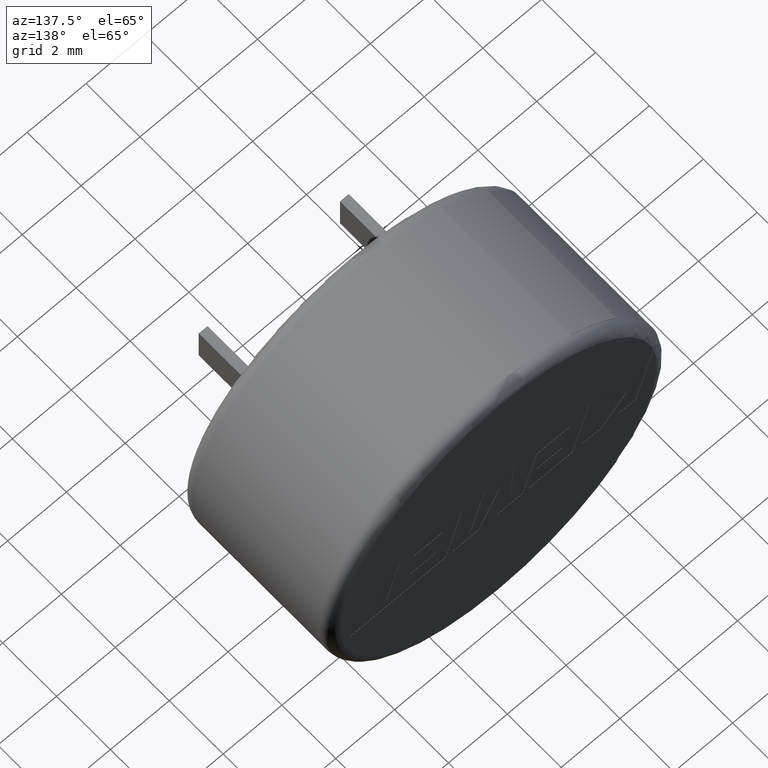
[diagram: clean part render]
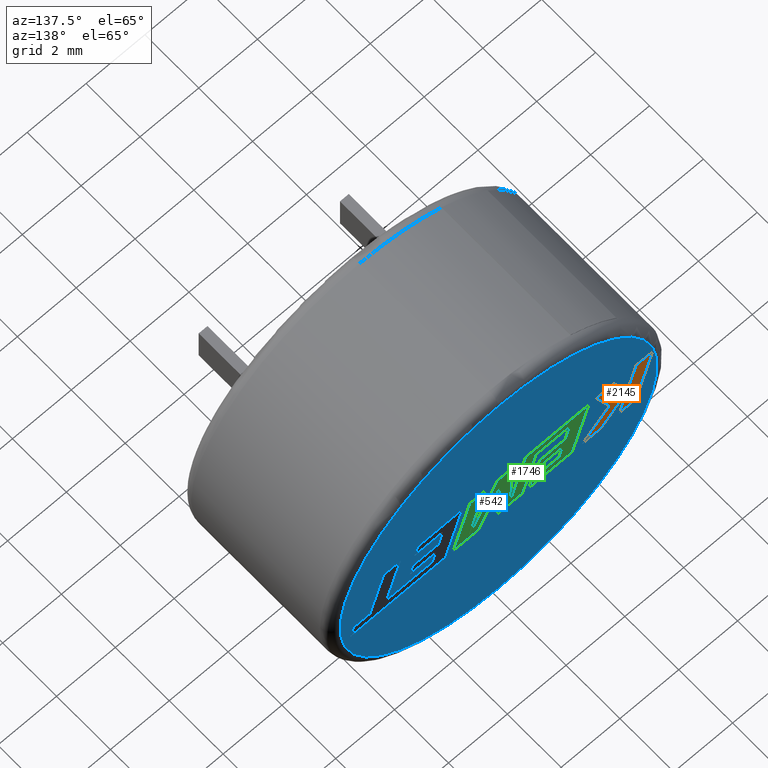
[diagram: same view with three faces highlighted in distinct colors, each labeled with its STEP entity id]
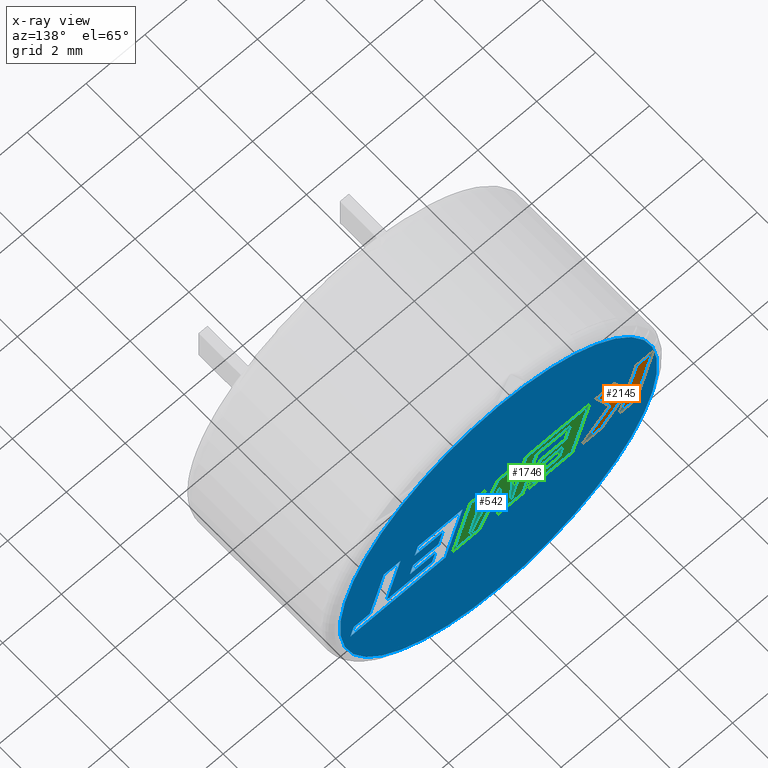
[diagram: x-ray of the same camera — body ghosted, the three highlighted faces saturated]
A machine part, auxiliary view with three faces highlighted in distinct colors.
The next image is the same camera in x-ray (body ghosted, the three faces saturated) — at least one of them is partly hidden behind the body in this view.
Their STEP definitions:

[orange] entity #2145 — the highlighted planar face has unit normal (0, -1, 0).
#36 = VECTOR ( 'NONE', #896, 1000.000000000000000 ) ;
#69 = VECTOR ( 'NONE', #1090, 1000.000000000000100 ) ;
#172 = EDGE_CURVE ( 'NONE', #976, #2391, #1281, .T. ) ;
#201 = DIRECTION ( 'NONE',  ( -0.7059037656364859400, -0.0000000000000000000, 0.7083077534943613700 ) ) ;
#208 = EDGE_CURVE ( 'NONE', #2085, #976, #733, .T. ) ;
#217 = DIRECTION ( 'NONE',  ( -1.000000000000000000, -0.0000000000000000000, -0.0000000000000000000 ) ) ;
#245 = ORIENTED_EDGE ( 'NONE', *, *, #172, .T. ) ;
#293 = FACE_OUTER_BOUND ( 'NONE', #2718, .T. ) ;
#307 = ORIENTED_EDGE ( 'NONE', *, *, #1096, .T. ) ;
#366 = CARTESIAN_POINT ( 'NONE',  ( -3.765038890539953000, 5.495000000000000100, -0.04168639734653927600 ) ) ;
#380 = CARTESIAN_POINT ( 'NONE',  ( -4.671798733445354100, 5.495000000000000100, -0.9631222229663523000 ) ) ;
#395 = VECTOR ( 'NONE', #1238, 1000.000000000000000 ) ;
#423 = EDGE_CURVE ( 'NONE', #1423, #570, #1717, .T. ) ;
#425 = DIRECTION ( 'NONE',  ( -1.000000000000000000, -0.0000000000000000000, -0.0000000000000000000 ) ) ;
#444 = PLANE ( 'NONE',  #704 ) ;
#477 = CARTESIAN_POINT ( 'NONE',  ( -5.251205731465742800, 5.495000000000000100, 1.053028994543842500 ) ) ;
#498 = LINE ( 'NONE', #645, #1572 ) ;
#531 = LINE ( 'NONE', #663, #36 ) ;
#551 = ORIENTED_EDGE ( 'NONE', *, *, #1785, .T. ) ;
#570 = VERTEX_POINT ( 'NONE', #1450 ) ;
#594 = VECTOR ( 'NONE', #2621, 1000.000000000000100 ) ;
#600 = CARTESIAN_POINT ( 'NONE',  ( -3.311272758248907000, 5.495000000000000100, 1.053028994543904900 ) ) ;
#645 = CARTESIAN_POINT ( 'NONE',  ( -3.487335487235283500, 5.495000000000000100, -0.9631222229663523000 ) ) ;
#661 = VECTOR ( 'NONE', #425, 1000.000000000000000 ) ;
#663 = CARTESIAN_POINT ( 'NONE',  ( -3.924721411668132800, 5.495000000000000100, 1.053028994543904900 ) ) ;
#692 = CARTESIAN_POINT ( 'NONE',  ( -3.765038890539953000, 5.495000000000000100, -0.04168639734653927600 ) ) ;
#704 = AXIS2_PLACEMENT_3D ( 'NONE', #2581, #1062, #1915 ) ;
#733 = LINE ( 'NONE', #477, #1946 ) ;
#739 = ORIENTED_EDGE ( 'NONE', *, *, #2050, .T. ) ;
#749 = ORIENTED_EDGE ( 'NONE', *, *, #2206, .T. ) ;
#880 = VERTEX_POINT ( 'NONE', #1180 ) ;
#896 = DIRECTION ( 'NONE',  ( 0.3725077383644269700, -0.0000000000000000000, 0.9280290862136917300 ) ) ;
#909 = CARTESIAN_POINT ( 'NONE',  ( -4.677904531710408900, 5.495000000000000100, 1.053028994543905300 ) ) ;
#976 = VERTEX_POINT ( 'NONE', #1865 ) ;
#1062 = DIRECTION ( 'NONE',  ( 0.0000000000000000000, -1.000000000000000000, 0.0000000000000000000 ) ) ;
#1079 = CARTESIAN_POINT ( 'NONE',  ( -2.823838918333584600, 5.495000000000000100, -0.9631222229663523000 ) ) ;
#1090 = DIRECTION ( 'NONE',  ( 0.2755265765475025100, -0.0000000000000000000, -0.9612934544747577800 ) ) ;
#1096 = EDGE_CURVE ( 'NONE', #1671, #2691, #2733, .T. ) ;
#1117 = CARTESIAN_POINT ( 'NONE',  ( -4.364136469712908800, 5.495000000000000100, -0.04168639734652045800 ) ) ;
#1180 = CARTESIAN_POINT ( 'NONE',  ( -3.487335487235283500, 5.495000000000000100, -0.9631222229663523000 ) ) ;
#1183 = CARTESIAN_POINT ( 'NONE',  ( -4.097731242331414100, 5.495000000000000100, -0.9631222229663523000 ) ) ;
#1215 = ORIENTED_EDGE ( 'NONE', *, *, #208, .T. ) ;
#1238 = DIRECTION ( 'NONE',  ( 0.7145695586382339000, -0.0000000000000000000, -0.6995643972269883800 ) ) ;
#1246 = CARTESIAN_POINT ( 'NONE',  ( -2.823838918333584600, 5.495000000000000100, -0.9631222229663523000 ) ) ;
#1270 = VERTEX_POINT ( 'NONE', #1117 ) ;
#1281 = LINE ( 'NONE', #2385, #2014 ) ;
#1325 = VERTEX_POINT ( 'NONE', #1079 ) ;
#1423 = VERTEX_POINT ( 'NONE', #1523 ) ;
#1450 = CARTESIAN_POINT ( 'NONE',  ( -4.097731242331414100, 5.495000000000000100, -0.9631222229663523000 ) ) ;
#1462 = CARTESIAN_POINT ( 'NONE',  ( -3.924721411668132800, 5.495000000000000100, 1.053028994543904900 ) ) ;
#1463 = ORIENTED_EDGE ( 'NONE', *, *, #2353, .T. ) ;
#1478 = CARTESIAN_POINT ( 'NONE',  ( -3.311272758248907000, 5.495000000000000100, 1.053028994543904900 ) ) ;
#1523 = CARTESIAN_POINT ( 'NONE',  ( -4.344182283275985800, 5.495000000000000100, -0.1033573956103139300 ) ) ;
#1563 = LINE ( 'NONE', #2546, #2516 ) ;
#1572 = VECTOR ( 'NONE', #217, 1000.000000000000000 ) ;
#1613 = VERTEX_POINT ( 'NONE', #366 ) ;
#1671 = VERTEX_POINT ( 'NONE', #1462 ) ;
#1675 = VECTOR ( 'NONE', #2764, 1000.000000000000000 ) ;
#1717 = LINE ( 'NONE', #1183, #2706 ) ;
#1719 = CARTESIAN_POINT ( 'NONE',  ( -4.671798733445354100, 5.495000000000000100, -0.9631222229663523000 ) ) ;
#1785 = EDGE_CURVE ( 'NONE', #880, #1423, #1563, .T. ) ;
#1865 = CARTESIAN_POINT ( 'NONE',  ( -5.251205731465742800, 5.495000000000000100, 1.053028994543842500 ) ) ;
#1902 = EDGE_CURVE ( 'NONE', #1270, #1671, #531, .T. ) ;
#1903 = LINE ( 'NONE', #2123, #69 ) ;
#1915 = DIRECTION ( 'NONE',  ( 0.0000000000000000000, -0.0000000000000000000, -1.000000000000000000 ) ) ;
#1946 = VECTOR ( 'NONE', #2641, 1000.000000000000100 ) ;
#2008 = ORIENTED_EDGE ( 'NONE', *, *, #2218, .T. ) ;
#2014 = VECTOR ( 'NONE', #2394, 1000.000000000000000 ) ;
#2045 = ORIENTED_EDGE ( 'NONE', *, *, #1902, .T. ) ;
#2048 = DIRECTION ( 'NONE',  ( 0.2755520632520542200, -0.0000000000000000000, -0.9612861490927329100 ) ) ;
#2050 = EDGE_CURVE ( 'NONE', #1613, #1325, #2634, .T. ) ;
#2075 = ORIENTED_EDGE ( 'NONE', *, *, #2152, .T. ) ;
#2085 = VERTEX_POINT ( 'NONE', #380 ) ;
#2123 = CARTESIAN_POINT ( 'NONE',  ( -4.364136469712908800, 5.495000000000000100, -0.04168639734652045800 ) ) ;
#2145 = ADVANCED_FACE ( 'NONE', ( #293 ), #444, .F. ) ;
#2152 = EDGE_CURVE ( 'NONE', #2391, #1270, #1903, .T. ) ;
#2204 = LINE ( 'NONE', #692, #594 ) ;
#2206 = EDGE_CURVE ( 'NONE', #1325, #880, #498, .T. ) ;
#2218 = EDGE_CURVE ( 'NONE', #570, #2085, #2265, .T. ) ;
#2265 = LINE ( 'NONE', #1719, #661 ) ;
#2353 = EDGE_CURVE ( 'NONE', #2691, #1613, #2204, .T. ) ;
#2381 = ORIENTED_EDGE ( 'NONE', *, *, #423, .T. ) ;
#2385 = CARTESIAN_POINT ( 'NONE',  ( -4.677904531710408900, 5.495000000000000100, 1.053028994543905300 ) ) ;
#2391 = VERTEX_POINT ( 'NONE', #909 ) ;
#2394 = DIRECTION ( 'NONE',  ( 1.000000000000000000, -0.0000000000000000000, 1.096870650732911000E-013 ) ) ;
#2516 = VECTOR ( 'NONE', #201, 1000.000000000000100 ) ;
#2546 = CARTESIAN_POINT ( 'NONE',  ( -4.344182283275985800, 5.495000000000000100, -0.1033573956103139300 ) ) ;
#2581 = CARTESIAN_POINT ( 'NONE',  ( 0.0000000000000000000, 5.495000000000000100, 0.0000000000000000000 ) ) ;
#2621 = DIRECTION ( 'NONE',  ( -0.3829140317376766900, -0.0000000000000000000, -0.9237839814038764100 ) ) ;
#2634 = LINE ( 'NONE', #1246, #395 ) ;
#2641 = DIRECTION ( 'NONE',  ( -0.2762033010252001900, -0.0000000000000000000, 0.9610992334315862100 ) ) ;
#2691 = VERTEX_POINT ( 'NONE', #1478 ) ;
#2706 = VECTOR ( 'NONE', #2048, 1000.000000000000100 ) ;
#2718 = EDGE_LOOP ( 'NONE', ( #1215, #245, #2075, #2045, #307, #1463, #739, #749, #551, #2381, #2008 ) ) ;
#2733 = LINE ( 'NONE', #600, #1675 ) ;
#2764 = DIRECTION ( 'NONE',  ( 1.000000000000000000, -0.0000000000000000000, -0.0000000000000000000 ) ) ;

[blue] entity #542 — the highlighted planar face has unit normal (0, 1, 0).
#5 = VECTOR ( 'NONE', #338, 1000.000000000000000 ) ;
#13 = DIRECTION ( 'NONE',  ( 0.2755265765475025100, -0.0000000000000000000, -0.9612934544747577800 ) ) ;
#15 = EDGE_LOOP ( 'NONE', ( #128, #952, #913, #646, #311, #2113, #1240, #1958, #1527, #722, #697, #510, #1765, #860, #1864, #2619, #1317, #1800, #1182, #178, #2664, #1013, #2107 ) ) ;
#22 = CARTESIAN_POINT ( 'NONE',  ( -1.016703871901081000, 5.500000000000000000, -0.9631222229663523000 ) ) ;
#24 = VECTOR ( 'NONE', #313, 1000.000000000000200 ) ;
#26 = VERTEX_POINT ( 'NONE', #1262 ) ;
#29 = CARTESIAN_POINT ( 'NONE',  ( 0.6798407158200339100, 5.500000000000000000, -0.9631222229663525300 ) ) ;
#32 = CARTESIAN_POINT ( 'NONE',  ( 1.807006385584198200, 5.500000000000000000, -0.9631222229663527500 ) ) ;
#35 = DIRECTION ( 'NONE',  ( 0.2740217765954067200, 0.0000000000000000000, -0.9617234872620595800 ) ) ;
#43 = CARTESIAN_POINT ( 'NONE',  ( 2.159524185522648100, 5.500000000000000000, -0.2042869498019199100 ) ) ;
#44 = EDGE_CURVE ( 'NONE', #1448, #774, #130, .T. ) ;
#49 = ORIENTED_EDGE ( 'NONE', *, *, #1449, .F. ) ;
#52 = CARTESIAN_POINT ( 'NONE',  ( 3.337746768091752500, 5.500000000000000000, 1.053028994543904200 ) ) ;
#53 = EDGE_LOOP ( 'NONE', ( #1964, #1793 ) ) ;
#55 = VERTEX_POINT ( 'NONE', #2563 ) ;
#58 = EDGE_CURVE ( 'NONE', #139, #64, #766, .T. ) ;
#64 = VERTEX_POINT ( 'NONE', #1949 ) ;
#65 = CARTESIAN_POINT ( 'NONE',  ( -4.671798733445354100, 5.500000000000000000, -0.9631222229663523000 ) ) ;
#73 = EDGE_CURVE ( 'NONE', #110, #1524, #1753, .T. ) ;
#84 = EDGE_CURVE ( 'NONE', #64, #450, #2431, .T. ) ;
#86 = CARTESIAN_POINT ( 'NONE',  ( 2.053187690916773900, 5.500000000000000000, 0.1683628157980141300 ) ) ;
#90 = EDGE_CURVE ( 'NONE', #856, #1448, #604, .T. ) ;
#98 = LINE ( 'NONE', #2638, #432 ) ;
#102 = FACE_OUTER_BOUND ( 'NONE', #53, .T. ) ;
#106 = VERTEX_POINT ( 'NONE', #1990 ) ;
#107 = DIRECTION ( 'NONE',  ( 0.2793947940814914300, 0.0000000000000000000, -0.9601763114346035800 ) ) ;
#110 = VERTEX_POINT ( 'NONE', #1537 ) ;
#120 = LINE ( 'NONE', #1705, #1899 ) ;
#128 = ORIENTED_EDGE ( 'NONE', *, *, #1181, .F. ) ;
#130 = LINE ( 'NONE', #2150, #1172 ) ;
#135 = ORIENTED_EDGE ( 'NONE', *, *, #1725, .F. ) ;
#139 = VERTEX_POINT ( 'NONE', #29 ) ;
#153 = VERTEX_POINT ( 'NONE', #279 ) ;
#155 = LINE ( 'NONE', #2132, #1441 ) ;
#163 = VERTEX_POINT ( 'NONE', #1970 ) ;
#177 = DIRECTION ( 'NONE',  ( 0.2755520632520542200, -0.0000000000000000000, -0.9612861490927329100 ) ) ;
#178 = ORIENTED_EDGE ( 'NONE', *, *, #1530, .F. ) ;
#191 = FACE_BOUND ( 'NONE', #15, .T. ) ;
#196 = CARTESIAN_POINT ( 'NONE',  ( 1.807006385584198200, 5.500000000000000000, -0.9631222229663527500 ) ) ;
#202 = CARTESIAN_POINT ( 'NONE',  ( -3.765038890539953000, 5.500000000000000000, -0.04168639734653927600 ) ) ;
#204 = CARTESIAN_POINT ( 'NONE',  ( 2.268643844463263300, 5.500000000000000000, -0.5792907574821812800 ) ) ;
#213 = CARTESIAN_POINT ( 'NONE',  ( -1.125700924485933100, 5.500000000000000000, -0.5793581909814401500 ) ) ;
#234 = CARTESIAN_POINT ( 'NONE',  ( 2.918285894870225900, 5.500000000000000000, 0.1683628157980139000 ) ) ;
#252 = CARTESIAN_POINT ( 'NONE',  ( 3.192556318522602200, 5.500000000000000000, -0.5766915026842742700 ) ) ;
#254 = DIRECTION ( 'NONE',  ( 1.000000000000000000, 0.0000000000000000000, -3.775570415932256000E-016 ) ) ;
#270 = CARTESIAN_POINT ( 'NONE',  ( -2.259736175507299100, 5.500000000000000000, 0.1683628157939400200 ) ) ;
#271 = DIRECTION ( 'NONE',  ( 0.9999891854650020400, 0.0000000000000000000, 0.004650693823678137000 ) ) ;
#273 = VECTOR ( 'NONE', #2620, 1000.000000000000000 ) ;
#279 = CARTESIAN_POINT ( 'NONE',  ( 2.859214151411832100, 5.500000000000000000, 0.6693814386009964100 ) ) ;
#280 = CARTESIAN_POINT ( 'NONE',  ( 1.227090569557494300, 5.500000000000000000, 1.053028994543904900 ) ) ;
#285 = EDGE_CURVE ( 'NONE', #2694, #422, #1909, .T. ) ;
#288 = VERTEX_POINT ( 'NONE', #2241 ) ;
#298 = VECTOR ( 'NONE', #1921, 1000.000000000000000 ) ;
#300 = VECTOR ( 'NONE', #2334, 1000.000000000000100 ) ;
#301 = VERTEX_POINT ( 'NONE', #2222 ) ;
#311 = ORIENTED_EDGE ( 'NONE', *, *, #501, .F. ) ;
#313 = DIRECTION ( 'NONE',  ( 0.2759782365590740500, 0.0000000000000000000, -0.9611638845408954100 ) ) ;
#321 = VERTEX_POINT ( 'NONE', #1367 ) ;
#322 = DIRECTION ( 'NONE',  ( -0.2762517575166151300, 0.0000000000000000000, 0.9610853065513910200 ) ) ;
#329 = EDGE_CURVE ( 'NONE', #106, #55, #2212, .T. ) ;
#336 = VERTEX_POINT ( 'NONE', #1148 ) ;
#338 = DIRECTION ( 'NONE',  ( 1.000000000000000000, 0.0000000000000000000, 0.0000000000000000000 ) ) ;
#352 = ORIENTED_EDGE ( 'NONE', *, *, #497, .F. ) ;
#353 = ORIENTED_EDGE ( 'NONE', *, *, #1814, .F. ) ;
#357 = CARTESIAN_POINT ( 'NONE',  ( -2.259736175507299100, 5.500000000000000000, 0.1683628157939400200 ) ) ;
#370 = DIRECTION ( 'NONE',  ( 0.2729786930695173900, 0.0000000000000000000, -0.9620200793798735500 ) ) ;
#373 = EDGE_CURVE ( 'NONE', #1122, #2451, #1034, .T. ) ;
#381 = DIRECTION ( 'NONE',  ( -0.2760118818968560500, 0.0000000000000000000, 0.9611542233438689100 ) ) ;
#393 = ORIENTED_EDGE ( 'NONE', *, *, #1913, .F. ) ;
#394 = AXIS2_PLACEMENT_3D ( 'NONE', #2501, #2540, #1661 ) ;
#404 = DIRECTION ( 'NONE',  ( 0.2745159998572669300, 0.0000000000000000000, -0.9615825319869143500 ) ) ;
#418 = VERTEX_POINT ( 'NONE', #757 ) ;
#422 = VERTEX_POINT ( 'NONE', #1203 ) ;
#426 = DIRECTION ( 'NONE',  ( 0.2762033010288755300, 0.0000000000000000000, -0.9610992334305299400 ) ) ;
#432 = VECTOR ( 'NONE', #1140, 1000.000000000000000 ) ;
#448 = CARTESIAN_POINT ( 'NONE',  ( 0.0000000000000000000, 5.500000000000000000, 0.0000000000000000000 ) ) ;
#450 = VERTEX_POINT ( 'NONE', #796 ) ;
#454 = LINE ( 'NONE', #770, #2165 ) ;
#455 = ORIENTED_EDGE ( 'NONE', *, *, #715, .F. ) ;
#471 = VECTOR ( 'NONE', #2086, 1000.000000000000000 ) ;
#476 = VERTEX_POINT ( 'NONE', #2040 ) ;
#479 = EDGE_CURVE ( 'NONE', #802, #1857, #568, .T. ) ;
#483 = EDGE_CURVE ( 'NONE', #321, #153, #2273, .T. ) ;
#487 = VECTOR ( 'NONE', #2349, 1000.000000000000000 ) ;
#491 = VERTEX_POINT ( 'NONE', #2728 ) ;
#497 = EDGE_CURVE ( 'NONE', #1394, #2083, #1073, .T. ) ;
#501 = EDGE_CURVE ( 'NONE', #1792, #1113, #1275, .T. ) ;
#503 = LINE ( 'NONE', #1029, #1715 ) ;
#510 = ORIENTED_EDGE ( 'NONE', *, *, #1144, .F. ) ;
#525 = CARTESIAN_POINT ( 'NONE',  ( -0.9143214339711456300, 5.500000000000000000, 1.053028994543905300 ) ) ;
#542 = ADVANCED_FACE ( 'NONE', ( #2461, #191, #2302, #102 ), #2114, .T. ) ;
#546 = DIRECTION ( 'NONE',  ( -1.000000000000000000, 0.0000000000000000000, 2.506186073112944800E-016 ) ) ;
#549 = VECTOR ( 'NONE', #322, 1000.000000000000100 ) ;
#560 = LINE ( 'NONE', #2017, #2133 ) ;
#565 = VECTOR ( 'NONE', #2345, 1000.000000000000000 ) ;
#567 = EDGE_CURVE ( 'NONE', #2451, #476, #503, .T. ) ;
#568 = LINE ( 'NONE', #357, #5 ) ;
#584 = EDGE_CURVE ( 'NONE', #1560, #2167, #2704, .T. ) ;
#593 = CARTESIAN_POINT ( 'NONE',  ( -1.284868498917413500, 5.500000000000000000, 0.6694550024109757700 ) ) ;
#599 = VECTOR ( 'NONE', #35, 1000.000000000000200 ) ;
#604 = LINE ( 'NONE', #2552, #273 ) ;
#606 = DIRECTION ( 'NONE',  ( 0.2746459304916897800, 0.0000000000000000000, -0.9615454294334480100 ) ) ;
#608 = EDGE_CURVE ( 'NONE', #1692, #336, #2178, .T. ) ;
#610 = ORIENTED_EDGE ( 'NONE', *, *, #2270, .F. ) ;
#611 = CARTESIAN_POINT ( 'NONE',  ( -2.153399680898977000, 5.500000000000000000, -0.2043543833022431500 ) ) ;
#621 = ORIENTED_EDGE ( 'NONE', *, *, #1196, .F. ) ;
#624 = EDGE_CURVE ( 'NONE', #1111, #491, #2735, .T. ) ;
#634 = VERTEX_POINT ( 'NONE', #678 ) ;
#638 = VECTOR ( 'NONE', #404, 999.9999999999998900 ) ;
#643 = DIRECTION ( 'NONE',  ( -1.000000000000000000, -0.0000000000000000000, -0.0000000000000000000 ) ) ;
#646 = ORIENTED_EDGE ( 'NONE', *, *, #2680, .F. ) ;
#648 = DIRECTION ( 'NONE',  ( 1.000000000000000000, 0.0000000000000000000, 0.0000000000000000000 ) ) ;
#657 = ORIENTED_EDGE ( 'NONE', *, *, #2371, .F. ) ;
#670 = VECTOR ( 'NONE', #1253, 1000.000000000000200 ) ;
#678 = CARTESIAN_POINT ( 'NONE',  ( -4.364136469712908800, 5.500000000000000000, -0.04168639734652045800 ) ) ;
#697 = ORIENTED_EDGE ( 'NONE', *, *, #2005, .F. ) ;
#711 = EDGE_CURVE ( 'NONE', #163, #1792, #1374, .T. ) ;
#713 = DIRECTION ( 'NONE',  ( 1.000000000000000000, 0.0000000000000000000, -4.034331580539989700E-016 ) ) ;
#715 = EDGE_CURVE ( 'NONE', #1822, #810, #98, .T. ) ;
#716 = ORIENTED_EDGE ( 'NONE', *, *, #932, .F. ) ;
#720 = VECTOR ( 'NONE', #1612, 1000.000000000000100 ) ;
#721 = CARTESIAN_POINT ( 'NONE',  ( 2.159524185522648100, 5.500000000000000000, -0.2042869498019199100 ) ) ;
#722 = ORIENTED_EDGE ( 'NONE', *, *, #916, .F. ) ;
#725 = CARTESIAN_POINT ( 'NONE',  ( -1.284868498917413500, 5.500000000000000000, 0.6694550024109757700 ) ) ;
#743 = DIRECTION ( 'NONE',  ( 1.000000000000000000, 0.0000000000000000000, -2.506541263247940100E-016 ) ) ;
#753 = ORIENTED_EDGE ( 'NONE', *, *, #2748, .F. ) ;
#757 = CARTESIAN_POINT ( 'NONE',  ( 3.024744995834479400, 5.500000000000000000, -0.2042869498019201400 ) ) ;
#762 = CARTESIAN_POINT ( 'NONE',  ( 3.805490025235814100, 5.500000000000000000, -0.5738409048522489200 ) ) ;
#766 = LINE ( 'NONE', #838, #300 ) ;
#770 = CARTESIAN_POINT ( 'NONE',  ( -3.924721411668132800, 5.500000000000000000, 1.053028994543904900 ) ) ;
#774 = VERTEX_POINT ( 'NONE', #933 ) ;
#779 = CARTESIAN_POINT ( 'NONE',  ( -3.086335984546776600, 5.500000000000000000, 1.053028994543905700 ) ) ;
#789 = VECTOR ( 'NONE', #743, 1000.000000000000000 ) ;
#796 = CARTESIAN_POINT ( 'NONE',  ( 0.04300255174971300700, 5.500000000000000000, -0.9631222229663527500 ) ) ;
#802 = VERTEX_POINT ( 'NONE', #270 ) ;
#808 = ORIENTED_EDGE ( 'NONE', *, *, #1616, .F. ) ;
#810 = VERTEX_POINT ( 'NONE', #1594 ) ;
#819 = DIRECTION ( 'NONE',  ( -1.000000000000000000, 0.0000000000000000000, 5.050979426444720200E-016 ) ) ;
#820 = ORIENTED_EDGE ( 'NONE', *, *, #90, .F. ) ;
#826 = VECTOR ( 'NONE', #1522, 1000.000000000000100 ) ;
#829 = CARTESIAN_POINT ( 'NONE',  ( 3.805490025235814100, 5.500000000000000000, -0.5738409048522489200 ) ) ;
#830 = LINE ( 'NONE', #1494, #2668 ) ;
#838 = CARTESIAN_POINT ( 'NONE',  ( 0.6798407158200340300, 5.500000000000000000, -0.9631222229663527500 ) ) ;
#839 = CARTESIAN_POINT ( 'NONE',  ( -3.765038890539953000, 5.500000000000000000, -0.04168639734653927600 ) ) ;
#842 = CARTESIAN_POINT ( 'NONE',  ( 0.04300255174971300700, 5.500000000000000000, -0.9631222229663527500 ) ) ;
#849 = ORIENTED_EDGE ( 'NONE', *, *, #2319, .F. ) ;
#856 = VERTEX_POINT ( 'NONE', #1188 ) ;
#860 = ORIENTED_EDGE ( 'NONE', *, *, #373, .F. ) ;
#864 = LINE ( 'NONE', #213, #1606 ) ;
#868 = EDGE_CURVE ( 'NONE', #1224, #26, #1870, .T. ) ;
#886 = CARTESIAN_POINT ( 'NONE',  ( -3.924721411668132800, 5.500000000000000000, 1.053028994543904900 ) ) ;
#900 = LINE ( 'NONE', #2710, #1304 ) ;
#902 = VECTOR ( 'NONE', #819, 1000.000000000000000 ) ;
#912 = EDGE_CURVE ( 'NONE', #2415, #1111, #2698, .T. ) ;
#913 = ORIENTED_EDGE ( 'NONE', *, *, #608, .F. ) ;
#916 = EDGE_CURVE ( 'NONE', #2494, #1619, #560, .T. ) ;
#924 = VECTOR ( 'NONE', #177, 1000.000000000000100 ) ;
#932 = EDGE_CURVE ( 'NONE', #2083, #2292, #2635, .T. ) ;
#933 = CARTESIAN_POINT ( 'NONE',  ( 4.931683720037595400, 5.500000000000000000, -0.5737970821254480000 ) ) ;
#946 = DIRECTION ( 'NONE',  ( -0.7059037656364859400, -0.0000000000000000000, 0.7083077534943613700 ) ) ;
#952 = ORIENTED_EDGE ( 'NONE', *, *, #1730, .F. ) ;
#953 = CARTESIAN_POINT ( 'NONE',  ( -2.153399680898977000, 5.500000000000000000, -0.2043543833022431500 ) ) ;
#965 = VECTOR ( 'NONE', #643, 1000.000000000000000 ) ;
#986 = ORIENTED_EDGE ( 'NONE', *, *, #2515, .F. ) ;
#989 = LINE ( 'NONE', #1085, #1600 ) ;
#1013 = ORIENTED_EDGE ( 'NONE', *, *, #84, .F. ) ;
#1029 = CARTESIAN_POINT ( 'NONE',  ( -2.044280021955986900, 5.500000000000000000, -0.5793581909814401500 ) ) ;
#1034 = LINE ( 'NONE', #953, #2103 ) ;
#1035 = CARTESIAN_POINT ( 'NONE',  ( 1.564110927417840000, 5.500000000000000000, -0.9631222229663527500 ) ) ;
#1038 = CARTESIAN_POINT ( 'NONE',  ( 1.910155113253702200, 5.500000000000000000, 0.6693814386009966400 ) ) ;
#1042 = VERTEX_POINT ( 'NONE', #2499 ) ;
#1065 = CARTESIAN_POINT ( 'NONE',  ( -0.03453285888950724500, 5.500000000000000000, 0.4772421111879622800 ) ) ;
#1067 = CARTESIAN_POINT ( 'NONE',  ( 2.918285894870225900, 5.500000000000000000, 0.1683628157980139000 ) ) ;
#1069 = DIRECTION ( 'NONE',  ( -1.000000000000000000, -0.0000000000000000000, -0.0000000000000000000 ) ) ;
#1073 = LINE ( 'NONE', #1038, #638 ) ;
#1085 = CARTESIAN_POINT ( 'NONE',  ( -5.251205731465742800, 5.500000000000000000, 1.053028994543842500 ) ) ;
#1087 = CARTESIAN_POINT ( 'NONE',  ( 1.910155113253702200, 5.500000000000000000, 0.6693814386009966400 ) ) ;
#1108 = EDGE_CURVE ( 'NONE', #2507, #1526, #830, .T. ) ;
#1111 = VERTEX_POINT ( 'NONE', #204 ) ;
#1113 = VERTEX_POINT ( 'NONE', #1893 ) ;
#1120 = CARTESIAN_POINT ( 'NONE',  ( -0.4995563842746180700, 5.500000000000000000, 1.053028994543905300 ) ) ;
#1122 = VERTEX_POINT ( 'NONE', #611 ) ;
#1126 = EDGE_LOOP ( 'NONE', ( #1425, #1214, #353, #1489, #621, #455, #610, #986, #808, #2236, #2343 ) ) ;
#1128 = LINE ( 'NONE', #2660, #549 ) ;
#1136 = VECTOR ( 'NONE', #1159, 1000.000000000000000 ) ;
#1139 = VECTOR ( 'NONE', #2367, 1000.000000000000000 ) ;
#1140 = DIRECTION ( 'NONE',  ( 0.7145695586382339000, -0.0000000000000000000, -0.6995643972269883800 ) ) ;
#1144 = EDGE_CURVE ( 'NONE', #476, #288, #864, .T. ) ;
#1147 = EDGE_CURVE ( 'NONE', #2759, #1122, #155, .T. ) ;
#1148 = CARTESIAN_POINT ( 'NONE',  ( 0.9844525863630282400, 5.500000000000000000, 1.053028994543904600 ) ) ;
#1151 = AXIS2_PLACEMENT_3D ( 'NONE', #448, #2386, #2587 ) ;
#1156 = ORIENTED_EDGE ( 'NONE', *, *, #1578, .F. ) ;
#1159 = DIRECTION ( 'NONE',  ( 1.000000000000000000, -0.0000000000000000000, 1.096870650732911000E-013 ) ) ;
#1161 = VECTOR ( 'NONE', #271, 1000.000000000000200 ) ;
#1172 = VECTOR ( 'NONE', #2142, 1000.000000000000100 ) ;
#1174 = DIRECTION ( 'NONE',  ( 0.2793947940878295200, 0.0000000000000000000, -0.9601763114327595000 ) ) ;
#1177 = EDGE_CURVE ( 'NONE', #450, #1701, #2100, .T. ) ;
#1181 = EDGE_CURVE ( 'NONE', #1466, #139, #2569, .T. ) ;
#1182 = ORIENTED_EDGE ( 'NONE', *, *, #285, .F. ) ;
#1187 = VECTOR ( 'NONE', #1295, 1000.000000000000000 ) ;
#1188 = CARTESIAN_POINT ( 'NONE',  ( 3.912071732558238600, 5.500000000000000000, 1.053028994543904000 ) ) ;
#1190 = EDGE_LOOP ( 'NONE', ( #2548, #1805, #49, #135, #716, #352, #1156, #1252, #849, #393, #2315, #753, #2314, #820, #1681, #2650, #657 ) ) ;
#1196 = EDGE_CURVE ( 'NONE', #810, #106, #1543, .T. ) ;
#1203 = CARTESIAN_POINT ( 'NONE',  ( -2.402511279821104600, 5.500000000000000000, 0.6694550024109757700 ) ) ;
#1207 = CARTESIAN_POINT ( 'NONE',  ( -0.8156049229187412000, 5.500000000000000000, -0.9631222229663523000 ) ) ;
#1214 = ORIENTED_EDGE ( 'NONE', *, *, #1108, .F. ) ;
#1222 = DIRECTION ( 'NONE',  ( 0.3725077383644269700, -0.0000000000000000000, 0.9280290862136917300 ) ) ;
#1224 = VERTEX_POINT ( 'NONE', #2304 ) ;
#1235 = EDGE_CURVE ( 'NONE', #1524, #110, #1809, .T. ) ;
#1240 = ORIENTED_EDGE ( 'NONE', *, *, #1433, .F. ) ;
#1242 = CARTESIAN_POINT ( 'NONE',  ( -3.487335487235283500, 5.500000000000000000, -0.9631222229663523000 ) ) ;
#1244 = EDGE_CURVE ( 'NONE', #422, #802, #2299, .T. ) ;
#1249 = CARTESIAN_POINT ( 'NONE',  ( -4.097731242331414100, 5.500000000000000000, -0.9631222229663523000 ) ) ;
#1252 = ORIENTED_EDGE ( 'NONE', *, *, #483, .F. ) ;
#1253 = DIRECTION ( 'NONE',  ( 0.4668459304955212000, 0.0000000000000000000, -0.8843386665637610300 ) ) ;
#1257 = LINE ( 'NONE', #1551, #2554 ) ;
#1262 = CARTESIAN_POINT ( 'NONE',  ( -4.677904531710408900, 5.500000000000000000, 1.053028994543905300 ) ) ;
#1275 = LINE ( 'NONE', #1914, #670 ) ;
#1282 = DIRECTION ( 'NONE',  ( 0.9999960426590096500, 0.0000000000000000000, 0.002813301676022722900 ) ) ;
#1287 = DIRECTION ( 'NONE',  ( 0.0000000000000000000, 0.0000000000000000000, 1.000000000000000000 ) ) ;
#1295 = DIRECTION ( 'NONE',  ( 0.2746918797667231600, 0.0000000000000000000, -0.9615323037684299100 ) ) ;
#1298 = VECTOR ( 'NONE', #648, 1000.000000000000000 ) ;
#1304 = VECTOR ( 'NONE', #606, 1000.000000000000100 ) ;
#1307 = VERTEX_POINT ( 'NONE', #1953 ) ;
#1317 = ORIENTED_EDGE ( 'NONE', *, *, #479, .F. ) ;
#1318 = CARTESIAN_POINT ( 'NONE',  ( -1.273190244891335900, 5.500000000000000000, 1.053028994543905300 ) ) ;
#1330 = LINE ( 'NONE', #1318, #1298 ) ;
#1347 = EDGE_CURVE ( 'NONE', #2438, #856, #1897, .T. ) ;
#1360 = EDGE_CURVE ( 'NONE', #26, #634, #1257, .T. ) ;
#1362 = VECTOR ( 'NONE', #1847, 1000.000000000000000 ) ;
#1367 = CARTESIAN_POINT ( 'NONE',  ( 2.750351965824065400, 5.500000000000000000, 1.053028994543904400 ) ) ;
#1368 = VECTOR ( 'NONE', #2676, 1000.000000000000000 ) ;
#1369 = CARTESIAN_POINT ( 'NONE',  ( -2.506168825485704900, 5.500000000000000000, -0.9631222229663520800 ) ) ;
#1374 = LINE ( 'NONE', #1120, #2637 ) ;
#1385 = EDGE_CURVE ( 'NONE', #1619, #2229, #1330, .T. ) ;
#1394 = VERTEX_POINT ( 'NONE', #1087 ) ;
#1396 = LINE ( 'NONE', #2464, #1774 ) ;
#1414 = CARTESIAN_POINT ( 'NONE',  ( 2.859214151411832100, 5.500000000000000000, 0.6693814386009964100 ) ) ;
#1425 = ORIENTED_EDGE ( 'NONE', *, *, #2283, .F. ) ;
#1426 = LINE ( 'NONE', #829, #2321 ) ;
#1433 = EDGE_CURVE ( 'NONE', #301, #163, #2325, .T. ) ;
#1441 = VECTOR ( 'NONE', #2101, 1000.000000000000000 ) ;
#1448 = VERTEX_POINT ( 'NONE', #2253 ) ;
#1449 = EDGE_CURVE ( 'NONE', #418, #2415, #1396, .T. ) ;
#1452 = VERTEX_POINT ( 'NONE', #762 ) ;
#1466 = VERTEX_POINT ( 'NONE', #2261 ) ;
#1469 = EDGE_CURVE ( 'NONE', #2229, #301, #2625, .T. ) ;
#1473 = CARTESIAN_POINT ( 'NONE',  ( 0.9844525863630282400, 5.500000000000000000, 1.053028994543904600 ) ) ;
#1489 = ORIENTED_EDGE ( 'NONE', *, *, #329, .F. ) ;
#1494 = CARTESIAN_POINT ( 'NONE',  ( -4.671798733445354100, 5.500000000000000000, -0.9631222229663523000 ) ) ;
#1522 = DIRECTION ( 'NONE',  ( -0.3829140317376766900, -0.0000000000000000000, -0.9237839814038764100 ) ) ;
#1524 = VERTEX_POINT ( 'NONE', #2457 ) ;
#1526 = VERTEX_POINT ( 'NONE', #65 ) ;
#1527 = ORIENTED_EDGE ( 'NONE', *, *, #1385, .F. ) ;
#1530 = EDGE_CURVE ( 'NONE', #1701, #2694, #1128, .T. ) ;
#1537 = CARTESIAN_POINT ( 'NONE',  ( 0.0000000000000000000, 5.500000000000000000, 5.395249999999999900 ) ) ;
#1543 = LINE ( 'NONE', #1242, #965 ) ;
#1551 = CARTESIAN_POINT ( 'NONE',  ( -4.364136469712908800, 5.500000000000000000, -0.04168639734652045800 ) ) ;
#1560 = VERTEX_POINT ( 'NONE', #2443 ) ;
#1576 = VECTOR ( 'NONE', #2378, 1000.000000000000000 ) ;
#1578 = EDGE_CURVE ( 'NONE', #153, #1394, #1931, .T. ) ;
#1594 = CARTESIAN_POINT ( 'NONE',  ( -2.823838918333584600, 5.500000000000000000, -0.9631222229663523000 ) ) ;
#1600 = VECTOR ( 'NONE', #1739, 1000.000000000000100 ) ;
#1605 = DIRECTION ( 'NONE',  ( -0.2765379750249959400, 0.0000000000000000000, 0.9610029908221278100 ) ) ;
#1606 = VECTOR ( 'NONE', #2514, 999.9999999999998900 ) ;
#1612 = DIRECTION ( 'NONE',  ( -0.05596501978067570900, 0.0000000000000000000, 0.9984327301130249100 ) ) ;
#1616 = EDGE_CURVE ( 'NONE', #634, #1987, #454, .T. ) ;
#1619 = VERTEX_POINT ( 'NONE', #779 ) ;
#1661 = DIRECTION ( 'NONE',  ( 0.0000000000000000000, -0.0000000000000000000, 1.000000000000000000 ) ) ;
#1681 = ORIENTED_EDGE ( 'NONE', *, *, #1347, .F. ) ;
#1685 = EDGE_CURVE ( 'NONE', #1452, #2438, #1426, .T. ) ;
#1692 = VERTEX_POINT ( 'NONE', #2526 ) ;
#1694 = LINE ( 'NONE', #1067, #1187 ) ;
#1695 = CARTESIAN_POINT ( 'NONE',  ( 0.0000000000000000000, 5.500000000000000000, 0.0000000000000000000 ) ) ;
#1701 = VERTEX_POINT ( 'NONE', #1207 ) ;
#1705 = CARTESIAN_POINT ( 'NONE',  ( 4.931683720037595400, 5.500000000000000000, -0.5737970821254480000 ) ) ;
#1715 = VECTOR ( 'NONE', #2518, 1000.000000000000000 ) ;
#1725 = EDGE_CURVE ( 'NONE', #2292, #418, #1694, .T. ) ;
#1728 = DIRECTION ( 'NONE',  ( 0.05375259206908298400, 0.0000000000000000000, -0.9985542843760947300 ) ) ;
#1730 = EDGE_CURVE ( 'NONE', #336, #1466, #2478, .T. ) ;
#1739 = DIRECTION ( 'NONE',  ( -0.2762033010252001900, -0.0000000000000000000, 0.9610992334315862100 ) ) ;
#1751 = CARTESIAN_POINT ( 'NONE',  ( -2.402511279821104600, 5.500000000000000000, 0.6694550024109757700 ) ) ;
#1753 = CIRCLE ( 'NONE', #2702, 5.395249999999999900 ) ;
#1754 = CARTESIAN_POINT ( 'NONE',  ( 0.4721173966834419400, 5.500000000000000000, 1.053028994543904900 ) ) ;
#1761 = CARTESIAN_POINT ( 'NONE',  ( -2.044280021955986900, 5.500000000000000000, -0.5793581909814401500 ) ) ;
#1765 = ORIENTED_EDGE ( 'NONE', *, *, #567, .F. ) ;
#1768 = CARTESIAN_POINT ( 'NONE',  ( -1.394503104559656100, 5.500000000000000000, 0.1683628157939400200 ) ) ;
#1774 = VECTOR ( 'NONE', #546, 1000.000000000000000 ) ;
#1792 = VERTEX_POINT ( 'NONE', #2313 ) ;
#1793 = ORIENTED_EDGE ( 'NONE', *, *, #1235, .T. ) ;
#1797 = CARTESIAN_POINT ( 'NONE',  ( -4.097731242331414100, 5.500000000000000000, -0.9631222229663523000 ) ) ;
#1800 = ORIENTED_EDGE ( 'NONE', *, *, #1244, .F. ) ;
#1805 = ORIENTED_EDGE ( 'NONE', *, *, #912, .F. ) ;
#1809 = CIRCLE ( 'NONE', #1151, 5.395249999999999900 ) ;
#1814 = EDGE_CURVE ( 'NONE', #55, #2507, #1826, .T. ) ;
#1822 = VERTEX_POINT ( 'NONE', #839 ) ;
#1826 = LINE ( 'NONE', #1249, #924 ) ;
#1836 = LINE ( 'NONE', #2648, #1368 ) ;
#1842 = CARTESIAN_POINT ( 'NONE',  ( -4.677904531710408900, 5.500000000000000000, 1.053028994543905300 ) ) ;
#1847 = DIRECTION ( 'NONE',  ( -1.000000000000000000, 0.0000000000000000000, 2.284793946200968400E-016 ) ) ;
#1857 = VERTEX_POINT ( 'NONE', #1768 ) ;
#1859 = CARTESIAN_POINT ( 'NONE',  ( 2.750351965824065400, 5.500000000000000000, 1.053028994543904400 ) ) ;
#1864 = ORIENTED_EDGE ( 'NONE', *, *, #1147, .F. ) ;
#1870 = LINE ( 'NONE', #1842, #1136 ) ;
#1893 = CARTESIAN_POINT ( 'NONE',  ( 0.9900434363040663300, 5.500000000000000000, -0.7505411885221796600 ) ) ;
#1897 = LINE ( 'NONE', #2153, #2389 ) ;
#1899 = VECTOR ( 'NONE', #426, 1000.000000000000100 ) ;
#1900 = LINE ( 'NONE', #202, #826 ) ;
#1909 = LINE ( 'NONE', #725, #2536 ) ;
#1913 = EDGE_CURVE ( 'NONE', #2167, #1042, #2271, .T. ) ;
#1914 = CARTESIAN_POINT ( 'NONE',  ( 0.03793149982259607500, 5.500000000000000000, 1.053028994543905100 ) ) ;
#1918 = DIRECTION ( 'NONE',  ( 0.0000000000000000000, 1.000000000000000000, 0.0000000000000000000 ) ) ;
#1921 = DIRECTION ( 'NONE',  ( -1.000000000000000000, 0.0000000000000000000, 0.0000000000000000000 ) ) ;
#1931 = LINE ( 'NONE', #1414, #1362 ) ;
#1949 = CARTESIAN_POINT ( 'NONE',  ( -0.03453285888950724500, 5.500000000000000000, 0.4772421111879622800 ) ) ;
#1953 = CARTESIAN_POINT ( 'NONE',  ( -3.311272758248907000, 5.500000000000000000, 1.053028994543904900 ) ) ;
#1958 = ORIENTED_EDGE ( 'NONE', *, *, #1469, .F. ) ;
#1964 = ORIENTED_EDGE ( 'NONE', *, *, #73, .T. ) ;
#1970 = CARTESIAN_POINT ( 'NONE',  ( -0.4995563842746180700, 5.500000000000000000, 1.053028994543905300 ) ) ;
#1984 = CARTESIAN_POINT ( 'NONE',  ( -0.3989456066037058200, 5.500000000000000000, -0.7418974402618798700 ) ) ;
#1987 = VERTEX_POINT ( 'NONE', #886 ) ;
#1990 = CARTESIAN_POINT ( 'NONE',  ( -3.487335487235283500, 5.500000000000000000, -0.9631222229663523000 ) ) ;
#2005 = EDGE_CURVE ( 'NONE', #288, #2494, #2703, .T. ) ;
#2017 = CARTESIAN_POINT ( 'NONE',  ( -2.506168825485704900, 5.500000000000000000, -0.9631222229663520800 ) ) ;
#2029 = VECTOR ( 'NONE', #2595, 1000.000000000000000 ) ;
#2040 = CARTESIAN_POINT ( 'NONE',  ( -1.125700924485933100, 5.500000000000000000, -0.5793581909814401500 ) ) ;
#2068 = EDGE_CURVE ( 'NONE', #1857, #2759, #900, .T. ) ;
#2083 = VERTEX_POINT ( 'NONE', #2508 ) ;
#2086 = DIRECTION ( 'NONE',  ( -1.000000000000000000, 0.0000000000000000000, 1.448785531673512200E-016 ) ) ;
#2100 = LINE ( 'NONE', #842, #902 ) ;
#2101 = DIRECTION ( 'NONE',  ( -1.000000000000000000, 0.0000000000000000000, 0.0000000000000000000 ) ) ;
#2103 = VECTOR ( 'NONE', #1174, 999.9999999999998900 ) ;
#2104 = CARTESIAN_POINT ( 'NONE',  ( 3.303711244630005400, 5.500000000000000000, -0.9631222229663528600 ) ) ;
#2107 = ORIENTED_EDGE ( 'NONE', *, *, #58, .F. ) ;
#2113 = ORIENTED_EDGE ( 'NONE', *, *, #711, .F. ) ;
#2114 = PLANE ( 'NONE',  #394 ) ;
#2129 = LINE ( 'NONE', #2757, #2658 ) ;
#2132 = CARTESIAN_POINT ( 'NONE',  ( -1.288044003593056700, 5.500000000000000000, -0.2043543833022431500 ) ) ;
#2133 = VECTOR ( 'NONE', #1605, 1000.000000000000000 ) ;
#2142 = DIRECTION ( 'NONE',  ( 0.9999999968487352000, 0.0000000000000000000, 7.938847109754407800E-005 ) ) ;
#2144 = VECTOR ( 'NONE', #370, 1000.000000000000000 ) ;
#2150 = CARTESIAN_POINT ( 'NONE',  ( 4.379680122707077800, 5.500000000000000000, -0.5738409048472185000 ) ) ;
#2153 = CARTESIAN_POINT ( 'NONE',  ( 3.337746768091752500, 5.500000000000000000, 1.053028994543904200 ) ) ;
#2165 = VECTOR ( 'NONE', #1222, 1000.000000000000000 ) ;
#2167 = VERTEX_POINT ( 'NONE', #196 ) ;
#2178 = LINE ( 'NONE', #1754, #565 ) ;
#2212 = LINE ( 'NONE', #2217, #2339 ) ;
#2217 = CARTESIAN_POINT ( 'NONE',  ( -4.344182283275985800, 5.500000000000000000, -0.1033573956103139300 ) ) ;
#2222 = CARTESIAN_POINT ( 'NONE',  ( -0.3989456066037058200, 5.500000000000000000, -0.7418974402618798700 ) ) ;
#2229 = VERTEX_POINT ( 'NONE', #525 ) ;
#2236 = ORIENTED_EDGE ( 'NONE', *, *, #1360, .F. ) ;
#2241 = CARTESIAN_POINT ( 'NONE',  ( -1.016703871901081000, 5.500000000000000000, -0.9631222229663523000 ) ) ;
#2242 = VECTOR ( 'NONE', #1728, 1000.000000000000100 ) ;
#2253 = CARTESIAN_POINT ( 'NONE',  ( 4.379680122707077800, 5.500000000000000000, -0.5738409048472185000 ) ) ;
#2261 = CARTESIAN_POINT ( 'NONE',  ( 1.564110927417840000, 5.500000000000000000, -0.9631222229663527500 ) ) ;
#2270 = EDGE_CURVE ( 'NONE', #1307, #1822, #1900, .T. ) ;
#2271 = LINE ( 'NONE', #32, #1139 ) ;
#2273 = LINE ( 'NONE', #1859, #2144 ) ;
#2283 = EDGE_CURVE ( 'NONE', #1526, #1224, #989, .T. ) ;
#2292 = VERTEX_POINT ( 'NONE', #234 ) ;
#2299 = LINE ( 'NONE', #1751, #599 ) ;
#2302 = FACE_BOUND ( 'NONE', #1126, .T. ) ;
#2304 = CARTESIAN_POINT ( 'NONE',  ( -5.251205731465742800, 5.500000000000000000, 1.053028994543842500 ) ) ;
#2313 = CARTESIAN_POINT ( 'NONE',  ( 0.03793149982259607500, 5.500000000000000000, 1.053028994543905100 ) ) ;
#2314 = ORIENTED_EDGE ( 'NONE', *, *, #44, .F. ) ;
#2315 = ORIENTED_EDGE ( 'NONE', *, *, #584, .F. ) ;
#2319 = EDGE_CURVE ( 'NONE', #1042, #321, #2662, .T. ) ;
#2321 = VECTOR ( 'NONE', #2553, 1000.000000000000200 ) ;
#2325 = LINE ( 'NONE', #1984, #720 ) ;
#2334 = DIRECTION ( 'NONE',  ( -0.4443210308329209000, 0.0000000000000000000, 0.8958676361826954900 ) ) ;
#2339 = VECTOR ( 'NONE', #946, 1000.000000000000100 ) ;
#2343 = ORIENTED_EDGE ( 'NONE', *, *, #868, .F. ) ;
#2345 = DIRECTION ( 'NONE',  ( 1.000000000000000000, 0.0000000000000000000, -4.232393926185561900E-016 ) ) ;
#2349 = DIRECTION ( 'NONE',  ( 0.2763139702539117400, 0.0000000000000000000, -0.9610674221107072800 ) ) ;
#2367 = DIRECTION ( 'NONE',  ( -0.2764273280489769100, 0.0000000000000000000, 0.9610348236706635100 ) ) ;
#2371 = EDGE_CURVE ( 'NONE', #491, #1452, #2395, .T. ) ;
#2374 = CARTESIAN_POINT ( 'NONE',  ( -1.288044003593056700, 5.500000000000000000, -0.2043543833022431500 ) ) ;
#2378 = DIRECTION ( 'NONE',  ( -1.000000000000000000, 0.0000000000000000000, 1.455827704943586500E-016 ) ) ;
#2386 = DIRECTION ( 'NONE',  ( 0.0000000000000000000, 1.000000000000000000, 0.0000000000000000000 ) ) ;
#2389 = VECTOR ( 'NONE', #254, 1000.000000000000000 ) ;
#2395 = LINE ( 'NONE', #252, #1161 ) ;
#2415 = VERTEX_POINT ( 'NONE', #43 ) ;
#2431 = LINE ( 'NONE', #1065, #2242 ) ;
#2438 = VERTEX_POINT ( 'NONE', #52 ) ;
#2439 = DIRECTION ( 'NONE',  ( -1.000000000000000000, 0.0000000000000000000, 0.0000000000000000000 ) ) ;
#2443 = CARTESIAN_POINT ( 'NONE',  ( 5.043569033575890300, 5.500000000000000000, -0.9631222229663530800 ) ) ;
#2451 = VERTEX_POINT ( 'NONE', #1761 ) ;
#2457 = CARTESIAN_POINT ( 'NONE',  ( 6.824497369098519000E-016, 5.500000000000000000, -5.395249999999999900 ) ) ;
#2461 = FACE_BOUND ( 'NONE', #1190, .T. ) ;
#2464 = CARTESIAN_POINT ( 'NONE',  ( 3.024744995834479400, 5.500000000000000000, -0.2042869498019201400 ) ) ;
#2478 = LINE ( 'NONE', #1473, #487 ) ;
#2493 = VECTOR ( 'NONE', #107, 1000.000000000000100 ) ;
#2494 = VERTEX_POINT ( 'NONE', #1369 ) ;
#2499 = CARTESIAN_POINT ( 'NONE',  ( 1.227090569557494300, 5.500000000000000000, 1.053028994543904900 ) ) ;
#2501 = CARTESIAN_POINT ( 'NONE',  ( 0.0000000000000000000, 5.500000000000000000, 0.0000000000000000000 ) ) ;
#2507 = VERTEX_POINT ( 'NONE', #1797 ) ;
#2508 = CARTESIAN_POINT ( 'NONE',  ( 2.053187690916773900, 5.500000000000000000, 0.1683628157980141300 ) ) ;
#2514 = DIRECTION ( 'NONE',  ( 0.2732148821745903900, 0.0000000000000000000, -0.9619530280415592400 ) ) ;
#2515 = EDGE_CURVE ( 'NONE', #1987, #1307, #1836, .T. ) ;
#2518 = DIRECTION ( 'NONE',  ( 1.000000000000000000, 0.0000000000000000000, 0.0000000000000000000 ) ) ;
#2526 = CARTESIAN_POINT ( 'NONE',  ( 0.4721173966834419400, 5.500000000000000000, 1.053028994543904900 ) ) ;
#2536 = VECTOR ( 'NONE', #2439, 1000.000000000000000 ) ;
#2540 = DIRECTION ( 'NONE',  ( 0.0000000000000000000, 1.000000000000000000, 0.0000000000000000000 ) ) ;
#2548 = ORIENTED_EDGE ( 'NONE', *, *, #624, .F. ) ;
#2552 = CARTESIAN_POINT ( 'NONE',  ( 3.912071732558238600, 5.500000000000000000, 1.053028994543904000 ) ) ;
#2553 = DIRECTION ( 'NONE',  ( -0.2763173343569915700, 0.0000000000000000000, 0.9610664548998921800 ) ) ;
#2554 = VECTOR ( 'NONE', #13, 1000.000000000000100 ) ;
#2563 = CARTESIAN_POINT ( 'NONE',  ( -4.344182283275985800, 5.500000000000000000, -0.1033573956103139300 ) ) ;
#2569 = LINE ( 'NONE', #1035, #298 ) ;
#2580 = CARTESIAN_POINT ( 'NONE',  ( 2.268643844463263300, 5.500000000000000000, -0.5792907574821812800 ) ) ;
#2587 = DIRECTION ( 'NONE',  ( 0.0000000000000000000, 0.0000000000000000000, 1.000000000000000000 ) ) ;
#2595 = DIRECTION ( 'NONE',  ( 1.000000000000000000, 0.0000000000000000000, -2.847054813160298500E-016 ) ) ;
#2607 = VECTOR ( 'NONE', #1282, 999.9999999999998900 ) ;
#2619 = ORIENTED_EDGE ( 'NONE', *, *, #2068, .F. ) ;
#2620 = DIRECTION ( 'NONE',  ( 0.2762437428917315400, 0.0000000000000000000, -0.9610876102172824000 ) ) ;
#2625 = LINE ( 'NONE', #2678, #24 ) ;
#2635 = LINE ( 'NONE', #86, #789 ) ;
#2637 = VECTOR ( 'NONE', #713, 1000.000000000000000 ) ;
#2638 = CARTESIAN_POINT ( 'NONE',  ( -2.823838918333584600, 5.500000000000000000, -0.9631222229663523000 ) ) ;
#2648 = CARTESIAN_POINT ( 'NONE',  ( -3.311272758248907000, 5.500000000000000000, 1.053028994543904900 ) ) ;
#2650 = ORIENTED_EDGE ( 'NONE', *, *, #1685, .F. ) ;
#2658 = VECTOR ( 'NONE', #381, 1000.000000000000200 ) ;
#2660 = CARTESIAN_POINT ( 'NONE',  ( -0.8156049229187412000, 5.500000000000000000, -0.9631222229663523000 ) ) ;
#2662 = LINE ( 'NONE', #280, #2029 ) ;
#2664 = ORIENTED_EDGE ( 'NONE', *, *, #1177, .F. ) ;
#2668 = VECTOR ( 'NONE', #1069, 1000.000000000000000 ) ;
#2676 = DIRECTION ( 'NONE',  ( 1.000000000000000000, -0.0000000000000000000, -0.0000000000000000000 ) ) ;
#2678 = CARTESIAN_POINT ( 'NONE',  ( -0.9143214339711456300, 5.500000000000000000, 1.053028994543905300 ) ) ;
#2680 = EDGE_CURVE ( 'NONE', #1113, #1692, #2129, .T. ) ;
#2694 = VERTEX_POINT ( 'NONE', #593 ) ;
#2698 = LINE ( 'NONE', #721, #2493 ) ;
#2702 = AXIS2_PLACEMENT_3D ( 'NONE', #1695, #1918, #1287 ) ;
#2703 = LINE ( 'NONE', #22, #1576 ) ;
#2704 = LINE ( 'NONE', #2104, #471 ) ;
#2710 = CARTESIAN_POINT ( 'NONE',  ( -1.394503104559656100, 5.500000000000000000, 0.1683628157939400200 ) ) ;
#2728 = CARTESIAN_POINT ( 'NONE',  ( 3.192556318522601800, 5.500000000000000000, -0.5766915026842742700 ) ) ;
#2735 = LINE ( 'NONE', #2580, #2607 ) ;
#2748 = EDGE_CURVE ( 'NONE', #774, #1560, #120, .T. ) ;
#2757 = CARTESIAN_POINT ( 'NONE',  ( 0.9900434363040663300, 5.500000000000000000, -0.7505411885221796600 ) ) ;
#2759 = VERTEX_POINT ( 'NONE', #2374 ) ;

[green] entity #1746 — the highlighted planar face has unit normal (0, -1, -0).
#57 = VECTOR ( 'NONE', #1076, 1000.000000000000000 ) ;
#63 = VERTEX_POINT ( 'NONE', #417 ) ;
#67 = LINE ( 'NONE', #2379, #961 ) ;
#92 = VECTOR ( 'NONE', #507, 1000.000000000000000 ) ;
#99 = LINE ( 'NONE', #654, #780 ) ;
#103 = CARTESIAN_POINT ( 'NONE',  ( -1.394503104559656100, 5.495000000000000100, 0.1683628157939400200 ) ) ;
#132 = CARTESIAN_POINT ( 'NONE',  ( -0.03453285888950724500, 5.495000000000000100, 0.4772421111879622800 ) ) ;
#160 = DIRECTION ( 'NONE',  ( -0.4443210308329209000, 0.0000000000000000000, 0.8958676361826954900 ) ) ;
#162 = CARTESIAN_POINT ( 'NONE',  ( -2.402511279821104600, 5.495000000000000100, 0.6694550024109757700 ) ) ;
#173 = VERTEX_POINT ( 'NONE', #1329 ) ;
#184 = LINE ( 'NONE', #513, #1666 ) ;
#188 = CARTESIAN_POINT ( 'NONE',  ( -0.4995563842746180700, 5.495000000000000100, 1.053028994543905300 ) ) ;
#210 = DIRECTION ( 'NONE',  ( 1.000000000000000000, 0.0000000000000000000, 0.0000000000000000000 ) ) ;
#220 = ORIENTED_EDGE ( 'NONE', *, *, #851, .T. ) ;
#253 = VECTOR ( 'NONE', #1504, 1000.000000000000000 ) ;
#272 = EDGE_CURVE ( 'NONE', #1974, #480, #999, .T. ) ;
#303 = DIRECTION ( 'NONE',  ( 0.2759782365590740500, 0.0000000000000000000, -0.9611638845408954100 ) ) ;
#385 = DIRECTION ( 'NONE',  ( 0.2740217765954067200, 0.0000000000000000000, -0.9617234872620595800 ) ) ;
#417 = CARTESIAN_POINT ( 'NONE',  ( 0.6798407158200340300, 5.495000000000000100, -0.9631222229663527500 ) ) ;
#440 = VERTEX_POINT ( 'NONE', #1617 ) ;
#466 = VECTOR ( 'NONE', #2465, 1000.000000000000200 ) ;
#469 = DIRECTION ( 'NONE',  ( -0.2760118818968560500, 0.0000000000000000000, 0.9611542233438689100 ) ) ;
#470 = EDGE_CURVE ( 'NONE', #1210, #63, #1278, .T. ) ;
#480 = VERTEX_POINT ( 'NONE', #2477 ) ;
#499 = LINE ( 'NONE', #1812, #1269 ) ;
#502 = LINE ( 'NONE', #1123, #1100 ) ;
#507 = DIRECTION ( 'NONE',  ( 1.000000000000000000, 0.0000000000000000000, -2.391869883976430500E-016 ) ) ;
#513 = CARTESIAN_POINT ( 'NONE',  ( 0.04300255174971300700, 5.495000000000000100, -0.9631222229663527500 ) ) ;
#524 = DIRECTION ( 'NONE',  ( 0.2763139702539117400, 0.0000000000000000000, -0.9610674221107072800 ) ) ;
#538 = ORIENTED_EDGE ( 'NONE', *, *, #1561, .T. ) ;
#543 = ORIENTED_EDGE ( 'NONE', *, *, #2109, .T. ) ;
#550 = EDGE_CURVE ( 'NONE', #1152, #925, #1405, .T. ) ;
#583 = ORIENTED_EDGE ( 'NONE', *, *, #2570, .T. ) ;
#592 = VECTOR ( 'NONE', #469, 1000.000000000000200 ) ;
#623 = VECTOR ( 'NONE', #210, 1000.000000000000000 ) ;
#626 = ORIENTED_EDGE ( 'NONE', *, *, #1920, .T. ) ;
#631 = LINE ( 'NONE', #1359, #592 ) ;
#654 = CARTESIAN_POINT ( 'NONE',  ( -2.153399680898977000, 5.495000000000000100, -0.2043543833022431500 ) ) ;
#666 = VERTEX_POINT ( 'NONE', #1947 ) ;
#680 = ORIENTED_EDGE ( 'NONE', *, *, #1047, .T. ) ;
#687 = LINE ( 'NONE', #188, #57 ) ;
#700 = EDGE_CURVE ( 'NONE', #2651, #2435, #2140, .T. ) ;
#710 = CARTESIAN_POINT ( 'NONE',  ( 0.04300255174971300700, 5.495000000000000100, -0.9631222229663527500 ) ) ;
#738 = CARTESIAN_POINT ( 'NONE',  ( -0.3989456066037058200, 5.495000000000000100, -0.7418974402618798700 ) ) ;
#747 = LINE ( 'NONE', #1919, #623 ) ;
#763 = CARTESIAN_POINT ( 'NONE',  ( 0.03793149982259607500, 5.495000000000000100, 1.053028994543905100 ) ) ;
#780 = VECTOR ( 'NONE', #876, 999.9999999999998900 ) ;
#814 = LINE ( 'NONE', #1490, #253 ) ;
#851 = EDGE_CURVE ( 'NONE', #2098, #1210, #499, .T. ) ;
#857 = PLANE ( 'NONE',  #2193 ) ;
#872 = VERTEX_POINT ( 'NONE', #1623 ) ;
#874 = DIRECTION ( 'NONE',  ( -0.2762517575166151300, 0.0000000000000000000, 0.9610853065513910200 ) ) ;
#876 = DIRECTION ( 'NONE',  ( 0.2793947940878295200, 0.0000000000000000000, -0.9601763114327595000 ) ) ;
#925 = VERTEX_POINT ( 'NONE', #2238 ) ;
#961 = VECTOR ( 'NONE', #2198, 999.9999999999998900 ) ;
#967 = CARTESIAN_POINT ( 'NONE',  ( 1.564110927417840000, 5.495000000000000100, -0.9631222229663527500 ) ) ;
#981 = ORIENTED_EDGE ( 'NONE', *, *, #2551, .T. ) ;
#997 = CARTESIAN_POINT ( 'NONE',  ( -0.8156049229187412000, 5.495000000000000100, -0.9631222229663523000 ) ) ;
#998 = VECTOR ( 'NONE', #385, 1000.000000000000200 ) ;
#999 = LINE ( 'NONE', #2646, #2673 ) ;
#1003 = CARTESIAN_POINT ( 'NONE',  ( -1.394503104559656100, 5.495000000000000100, 0.1683628157939400200 ) ) ;
#1018 = CARTESIAN_POINT ( 'NONE',  ( -2.044280021955986900, 5.495000000000000100, -0.5793581909814401500 ) ) ;
#1020 = CARTESIAN_POINT ( 'NONE',  ( 0.9844525863630282400, 5.495000000000000100, 1.053028994543904600 ) ) ;
#1023 = LINE ( 'NONE', #1393, #92 ) ;
#1026 = ORIENTED_EDGE ( 'NONE', *, *, #272, .T. ) ;
#1028 = LINE ( 'NONE', #763, #466 ) ;
#1031 = EDGE_CURVE ( 'NONE', #480, #1763, #1376, .T. ) ;
#1039 = ORIENTED_EDGE ( 'NONE', *, *, #550, .T. ) ;
#1047 = EDGE_CURVE ( 'NONE', #1696, #1587, #1028, .T. ) ;
#1052 = VECTOR ( 'NONE', #1444, 1000.000000000000000 ) ;
#1076 = DIRECTION ( 'NONE',  ( 1.000000000000000000, 0.0000000000000000000, -4.034331580539989700E-016 ) ) ;
#1084 = CARTESIAN_POINT ( 'NONE',  ( -1.016703871901081000, 5.495000000000000100, -0.9631222229663523000 ) ) ;
#1100 = VECTOR ( 'NONE', #874, 1000.000000000000100 ) ;
#1123 = CARTESIAN_POINT ( 'NONE',  ( -0.8156049229187412000, 5.495000000000000100, -0.9631222229663523000 ) ) ;
#1152 = VERTEX_POINT ( 'NONE', #2547 ) ;
#1166 = LINE ( 'NONE', #1084, #2069 ) ;
#1176 = ORIENTED_EDGE ( 'NONE', *, *, #2422, .T. ) ;
#1202 = VECTOR ( 'NONE', #2122, 1000.000000000000000 ) ;
#1206 = VECTOR ( 'NONE', #2450, 1000.000000000000000 ) ;
#1210 = VERTEX_POINT ( 'NONE', #1465 ) ;
#1269 = VECTOR ( 'NONE', #524, 1000.000000000000000 ) ;
#1278 = LINE ( 'NONE', #967, #1206 ) ;
#1283 = CARTESIAN_POINT ( 'NONE',  ( -0.3989456066037058200, 5.495000000000000100, -0.7418974402618798700 ) ) ;
#1309 = EDGE_CURVE ( 'NONE', #173, #1152, #99, .T. ) ;
#1329 = CARTESIAN_POINT ( 'NONE',  ( -2.153399680898977000, 5.495000000000000100, -0.2043543833022431500 ) ) ;
#1334 = ORIENTED_EDGE ( 'NONE', *, *, #1742, .T. ) ;
#1359 = CARTESIAN_POINT ( 'NONE',  ( 0.9900434363040663300, 5.495000000000000100, -0.7505411885221796600 ) ) ;
#1376 = LINE ( 'NONE', #162, #998 ) ;
#1380 = ORIENTED_EDGE ( 'NONE', *, *, #2185, .T. ) ;
#1393 = CARTESIAN_POINT ( 'NONE',  ( -3.086335984546776600, 5.495000000000000100, 1.053028994543905700 ) ) ;
#1402 = VECTOR ( 'NONE', #2382, 1000.000000000000100 ) ;
#1405 = LINE ( 'NONE', #1018, #1202 ) ;
#1424 = CARTESIAN_POINT ( 'NONE',  ( -1.288044003593056700, 5.495000000000000100, -0.2043543833022431500 ) ) ;
#1444 = DIRECTION ( 'NONE',  ( -1.000000000000000000, 0.0000000000000000000, 0.0000000000000000000 ) ) ;
#1465 = CARTESIAN_POINT ( 'NONE',  ( 1.564110927417840000, 5.495000000000000100, -0.9631222229663527500 ) ) ;
#1490 = CARTESIAN_POINT ( 'NONE',  ( 0.4721173966834419400, 5.495000000000000100, 1.053028994543904900 ) ) ;
#1504 = DIRECTION ( 'NONE',  ( 1.000000000000000000, 0.0000000000000000000, -4.232393926185561900E-016 ) ) ;
#1514 = DIRECTION ( 'NONE',  ( 0.0000000000000000000, 0.0000000000000000000, -1.000000000000000000 ) ) ;
#1529 = DIRECTION ( 'NONE',  ( -1.000000000000000000, 0.0000000000000000000, 1.455827704943586500E-016 ) ) ;
#1541 = VECTOR ( 'NONE', #2137, 1000.000000000000100 ) ;
#1561 = EDGE_CURVE ( 'NONE', #63, #2651, #1698, .T. ) ;
#1587 = VERTEX_POINT ( 'NONE', #2504 ) ;
#1617 = CARTESIAN_POINT ( 'NONE',  ( 0.4721173966834419400, 5.495000000000000100, 1.053028994543904900 ) ) ;
#1623 = CARTESIAN_POINT ( 'NONE',  ( -3.086335984546776600, 5.495000000000000100, 1.053028994543905700 ) ) ;
#1635 = EDGE_CURVE ( 'NONE', #2411, #173, #2689, .T. ) ;
#1646 = CARTESIAN_POINT ( 'NONE',  ( -1.016703871901081000, 5.495000000000000100, -0.9631222229663523000 ) ) ;
#1655 = ORIENTED_EDGE ( 'NONE', *, *, #1791, .T. ) ;
#1659 = FACE_OUTER_BOUND ( 'NONE', #1925, .T. ) ;
#1660 = VERTEX_POINT ( 'NONE', #997 ) ;
#1666 = VECTOR ( 'NONE', #2656, 1000.000000000000000 ) ;
#1696 = VERTEX_POINT ( 'NONE', #2143 ) ;
#1698 = LINE ( 'NONE', #2512, #2197 ) ;
#1710 = CARTESIAN_POINT ( 'NONE',  ( 0.0000000000000000000, 5.495000000000000100, 0.0000000000000000000 ) ) ;
#1726 = DIRECTION ( 'NONE',  ( -0.2765379750249959400, 0.0000000000000000000, 0.9610029908221278100 ) ) ;
#1742 = EDGE_CURVE ( 'NONE', #440, #2098, #814, .T. ) ;
#1746 = ADVANCED_FACE ( 'NONE', ( #1659 ), #857, .F. ) ;
#1758 = ORIENTED_EDGE ( 'NONE', *, *, #2529, .T. ) ;
#1763 = VERTEX_POINT ( 'NONE', #1929 ) ;
#1781 = EDGE_CURVE ( 'NONE', #1763, #2592, #747, .T. ) ;
#1791 = EDGE_CURVE ( 'NONE', #666, #1696, #687, .T. ) ;
#1802 = VECTOR ( 'NONE', #303, 1000.000000000000200 ) ;
#1804 = LINE ( 'NONE', #1283, #1541 ) ;
#1812 = CARTESIAN_POINT ( 'NONE',  ( 0.9844525863630282400, 5.495000000000000100, 1.053028994543904600 ) ) ;
#1848 = VERTEX_POINT ( 'NONE', #2761 ) ;
#1871 = LINE ( 'NONE', #103, #2139 ) ;
#1884 = ORIENTED_EDGE ( 'NONE', *, *, #1995, .T. ) ;
#1889 = ORIENTED_EDGE ( 'NONE', *, *, #2434, .T. ) ;
#1919 = CARTESIAN_POINT ( 'NONE',  ( -2.259736175507299100, 5.495000000000000100, 0.1683628157939400200 ) ) ;
#1920 = EDGE_CURVE ( 'NONE', #2056, #2376, #1166, .T. ) ;
#1925 = EDGE_LOOP ( 'NONE', ( #2600, #538, #2447, #583, #2058, #1026, #2644, #2030, #1884, #2028, #2020, #1039, #1176, #626, #543, #981, #1758, #1380, #1655, #680, #1889, #1334, #220 ) ) ;
#1929 = CARTESIAN_POINT ( 'NONE',  ( -2.259736175507299100, 5.495000000000000100, 0.1683628157939400200 ) ) ;
#1947 = CARTESIAN_POINT ( 'NONE',  ( -0.4995563842746180700, 5.495000000000000100, 1.053028994543905300 ) ) ;
#1955 = EDGE_CURVE ( 'NONE', #1660, #1974, #502, .T. ) ;
#1960 = CARTESIAN_POINT ( 'NONE',  ( -1.284868498917413500, 5.495000000000000100, 0.6694550024109757700 ) ) ;
#1974 = VERTEX_POINT ( 'NONE', #1960 ) ;
#1995 = EDGE_CURVE ( 'NONE', #2592, #2411, #1871, .T. ) ;
#2020 = ORIENTED_EDGE ( 'NONE', *, *, #1309, .T. ) ;
#2023 = DIRECTION ( 'NONE',  ( -1.000000000000000000, 0.0000000000000000000, 0.0000000000000000000 ) ) ;
#2028 = ORIENTED_EDGE ( 'NONE', *, *, #1635, .T. ) ;
#2030 = ORIENTED_EDGE ( 'NONE', *, *, #1781, .T. ) ;
#2056 = VERTEX_POINT ( 'NONE', #1646 ) ;
#2058 = ORIENTED_EDGE ( 'NONE', *, *, #1955, .T. ) ;
#2062 = DIRECTION ( 'NONE',  ( 0.2746459304916897800, 0.0000000000000000000, -0.9615454294334480100 ) ) ;
#2069 = VECTOR ( 'NONE', #1529, 1000.000000000000000 ) ;
#2098 = VERTEX_POINT ( 'NONE', #1020 ) ;
#2109 = EDGE_CURVE ( 'NONE', #2376, #872, #2492, .T. ) ;
#2122 = DIRECTION ( 'NONE',  ( 1.000000000000000000, 0.0000000000000000000, 0.0000000000000000000 ) ) ;
#2137 = DIRECTION ( 'NONE',  ( -0.05596501978067570900, 0.0000000000000000000, 0.9984327301130249100 ) ) ;
#2139 = VECTOR ( 'NONE', #2062, 1000.000000000000100 ) ;
#2140 = LINE ( 'NONE', #2213, #1402 ) ;
#2143 = CARTESIAN_POINT ( 'NONE',  ( 0.03793149982259607500, 5.495000000000000100, 1.053028994543905100 ) ) ;
#2185 = EDGE_CURVE ( 'NONE', #2471, #666, #1804, .T. ) ;
#2188 = CARTESIAN_POINT ( 'NONE',  ( -2.506168825485704900, 5.495000000000000100, -0.9631222229663520800 ) ) ;
#2193 = AXIS2_PLACEMENT_3D ( 'NONE', #1710, #2534, #1514 ) ;
#2197 = VECTOR ( 'NONE', #160, 1000.000000000000100 ) ;
#2198 = DIRECTION ( 'NONE',  ( 0.2732148821745903900, 0.0000000000000000000, -0.9619530280415592400 ) ) ;
#2213 = CARTESIAN_POINT ( 'NONE',  ( -0.03453285888950724500, 5.495000000000000100, 0.4772421111879622800 ) ) ;
#2232 = LINE ( 'NONE', #2233, #1802 ) ;
#2233 = CARTESIAN_POINT ( 'NONE',  ( -0.9143214339711456300, 5.495000000000000100, 1.053028994543905300 ) ) ;
#2238 = CARTESIAN_POINT ( 'NONE',  ( -1.125700924485933100, 5.495000000000000100, -0.5793581909814401500 ) ) ;
#2354 = CARTESIAN_POINT ( 'NONE',  ( -2.506168825485704900, 5.495000000000000100, -0.9631222229663520800 ) ) ;
#2376 = VERTEX_POINT ( 'NONE', #2188 ) ;
#2379 = CARTESIAN_POINT ( 'NONE',  ( -1.125700924485933100, 5.495000000000000100, -0.5793581909814401500 ) ) ;
#2382 = DIRECTION ( 'NONE',  ( 0.05375259206908298400, 0.0000000000000000000, -0.9985542843760947300 ) ) ;
#2396 = CARTESIAN_POINT ( 'NONE',  ( -1.288044003593056700, 5.495000000000000100, -0.2043543833022431500 ) ) ;
#2411 = VERTEX_POINT ( 'NONE', #2396 ) ;
#2422 = EDGE_CURVE ( 'NONE', #925, #2056, #67, .T. ) ;
#2434 = EDGE_CURVE ( 'NONE', #1587, #440, #631, .T. ) ;
#2435 = VERTEX_POINT ( 'NONE', #710 ) ;
#2447 = ORIENTED_EDGE ( 'NONE', *, *, #700, .T. ) ;
#2450 = DIRECTION ( 'NONE',  ( -1.000000000000000000, 0.0000000000000000000, 0.0000000000000000000 ) ) ;
#2458 = VECTOR ( 'NONE', #1726, 1000.000000000000000 ) ;
#2465 = DIRECTION ( 'NONE',  ( 0.4668459304955212000, 0.0000000000000000000, -0.8843386665637610300 ) ) ;
#2471 = VERTEX_POINT ( 'NONE', #738 ) ;
#2477 = CARTESIAN_POINT ( 'NONE',  ( -2.402511279821104600, 5.495000000000000100, 0.6694550024109757700 ) ) ;
#2492 = LINE ( 'NONE', #2354, #2458 ) ;
#2504 = CARTESIAN_POINT ( 'NONE',  ( 0.9900434363040663300, 5.495000000000000100, -0.7505411885221796600 ) ) ;
#2512 = CARTESIAN_POINT ( 'NONE',  ( 0.6798407158200340300, 5.495000000000000100, -0.9631222229663527500 ) ) ;
#2529 = EDGE_CURVE ( 'NONE', #1848, #2471, #2232, .T. ) ;
#2534 = DIRECTION ( 'NONE',  ( 0.0000000000000000000, -1.000000000000000000, -0.0000000000000000000 ) ) ;
#2547 = CARTESIAN_POINT ( 'NONE',  ( -2.044280021955986900, 5.495000000000000100, -0.5793581909814401500 ) ) ;
#2551 = EDGE_CURVE ( 'NONE', #872, #1848, #1023, .T. ) ;
#2570 = EDGE_CURVE ( 'NONE', #2435, #1660, #184, .T. ) ;
#2592 = VERTEX_POINT ( 'NONE', #1003 ) ;
#2600 = ORIENTED_EDGE ( 'NONE', *, *, #470, .T. ) ;
#2644 = ORIENTED_EDGE ( 'NONE', *, *, #1031, .T. ) ;
#2646 = CARTESIAN_POINT ( 'NONE',  ( -1.284868498917413500, 5.495000000000000100, 0.6694550024109757700 ) ) ;
#2651 = VERTEX_POINT ( 'NONE', #132 ) ;
#2656 = DIRECTION ( 'NONE',  ( -1.000000000000000000, 0.0000000000000000000, 5.050979426444720200E-016 ) ) ;
#2673 = VECTOR ( 'NONE', #2023, 1000.000000000000000 ) ;
#2689 = LINE ( 'NONE', #1424, #1052 ) ;
#2761 = CARTESIAN_POINT ( 'NONE',  ( -0.9143214339711456300, 5.495000000000000100, 1.053028994543905300 ) ) ;